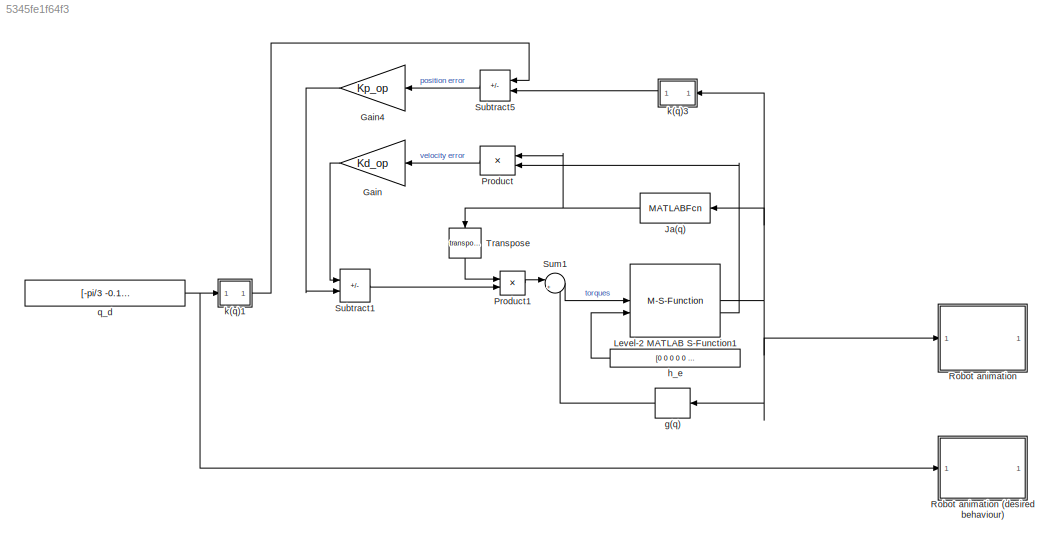
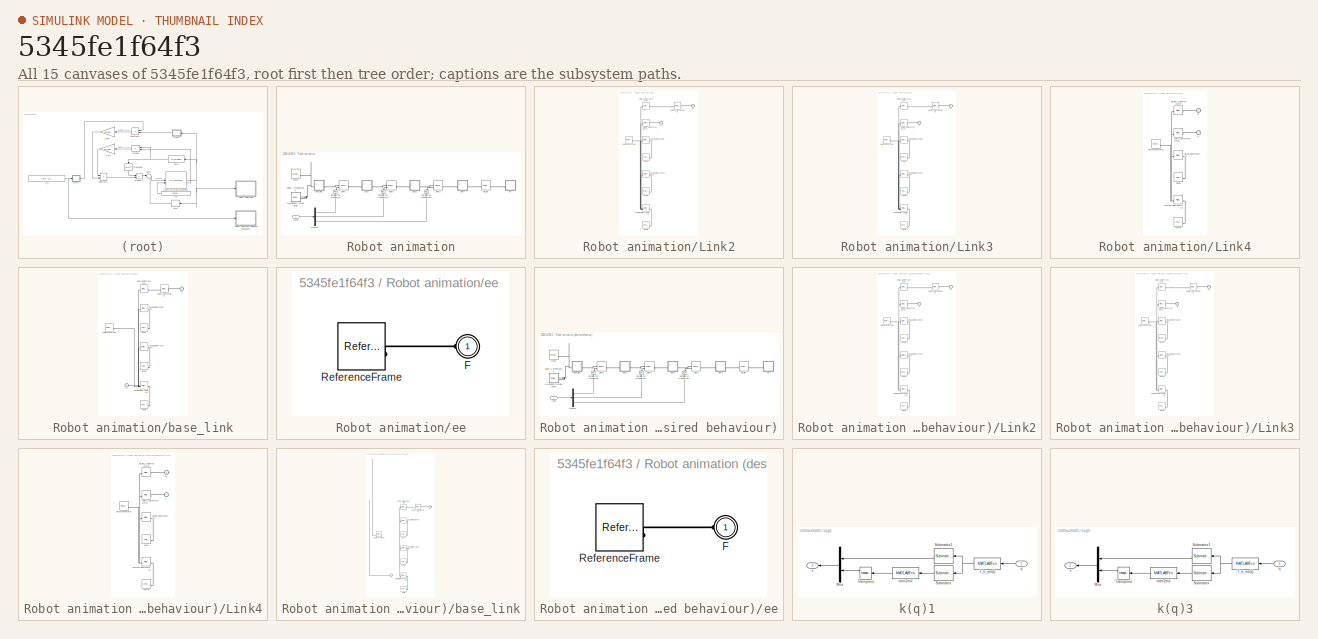
[diagram: thumbnail index - all 15 canvases of the model, root first then tree order]
MODEL slx_5345fe1f64f3
KIND model
CONFIG AbsTol = auto
CONFIG EnableMultiTasking = off
CONFIG FixedStep = 0.001
CONFIG MaxStep = auto
CONFIG MinStep = 0.001
CONFIG RelTol = 1e-3
CONFIG SampleTimeConstraint = Unconstrained
CONFIG SolverName = VariableStepAuto
CONFIG StartTime = 0.0
CONFIG StopTime = 10
BLOCK [Gain] Gain
  Gain = Kd_op
  Multiplication = Matrix(K*u)
  NameLocation = top
BLOCK [Gain] Gain4
  Gain = Kp_op
  Multiplication = Matrix(K*u)
  NameLocation = top
BLOCK [MATLABFcn] Ja(q)
  MATLABFcn = myRobot.func.Ja(u(1),u(2),u(3))
  NameLocation = top
  Output1D = off
BLOCK [M-S-Function] Level-2 MATLAB S-Function1
  FunctionName = robot_s_function
  Parameters = myRobot,q_i,dq_i
BLOCK [Product] Product
  Multiplication = Matrix(*)
  NameLocation = top
BLOCK [Product] Product1
  Multiplication = Matrix(*)
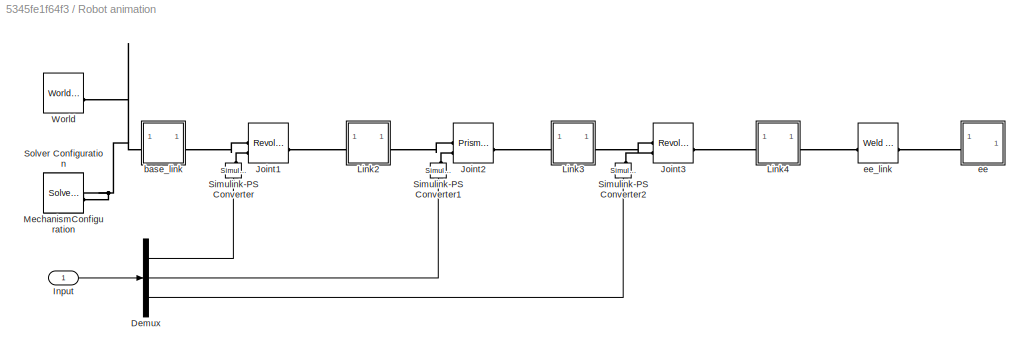
BLOCK [SubSystem] Robot animation
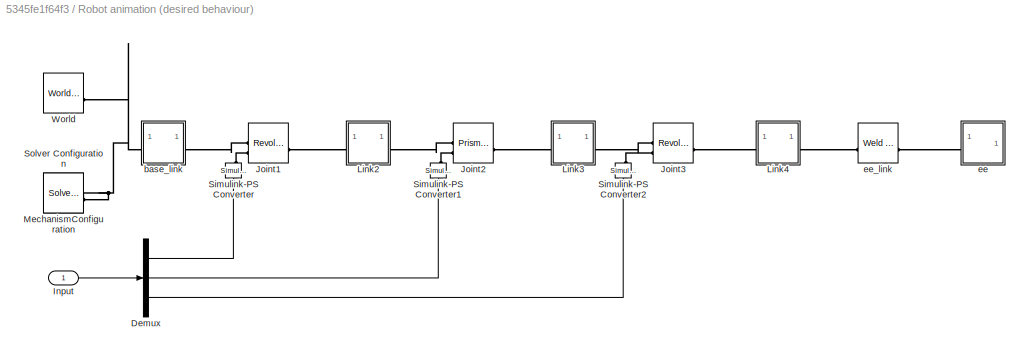
BLOCK [SubSystem] Robot animation (desired behaviour)
BLOCK [Demux] Robot animation (desired behaviour)/Demux
  Outputs = 3
BLOCK [Inport] Robot animation (desired behaviour)/Input
BLOCK [Reference] Robot animation (desired behaviour)/Joint1  REF=sm_lib/Joints/Revolute Joint
  SourceBlock = sm_lib/Joints/Revolute Joint
  SourceType = Revolute Joint
BLOCK [Reference] Robot animation (desired behaviour)/Joint2  REF=sm_lib/Joints/Prismatic
Joint
  SourceBlock = sm_lib/Joints/Prismatic\nJoint
  SourceType = Prismatic\nJoint
BLOCK [Reference] Robot animation (desired behaviour)/Joint3  REF=sm_lib/Joints/Revolute Joint
  SourceBlock = sm_lib/Joints/Revolute Joint
  SourceType = Revolute Joint
BLOCK [SubSystem] Robot animation (desired behaviour)/Link2
BLOCK [PMIOPort] Robot animation (desired behaviour)/Link2/F
  Side = Left
BLOCK [PMIOPort] Robot animation (desired behaviour)/Link2/F1
  Port = 2
  Side = Right
BLOCK [Reference] Robot animation (desired behaviour)/Link2/Inertia  REF=sm_lib/Body Elements/Inertia
  SourceBlock = sm_lib/Body Elements/Inertia
  SourceType = Inertia
BLOCK [Reference] Robot animation (desired behaviour)/Link2/InertiaOriginTransform  REF=sm_lib/Frames and
Transforms/Rigid
Transform
  SourceBlock = sm_lib/Frames and\nTransforms/Rigid\nTransform
  SourceType = Rigid\nTransform
BLOCK [Reference] Robot animation (desired behaviour)/Link2/Joint1_AxisInvTransform  REF=sm_lib/Frames and
Transforms/Rigid
Transform
  SourceBlock = sm_lib/Frames and\nTransforms/Rigid\nTransform
  SourceType = Rigid\nTransform
BLOCK [Reference] Robot animation (desired behaviour)/Link2/Joint2_AxisTransform  REF=sm_lib/Frames and
Transforms/Rigid
Transform
  SourceBlock = sm_lib/Frames and\nTransforms/Rigid\nTransform
  SourceType = Rigid\nTransform
BLOCK [Reference] Robot animation (desired behaviour)/Link2/Joint2_OriginTransform  REF=sm_lib/Frames and
Transforms/Rigid
Transform
  SourceBlock = sm_lib/Frames and\nTransforms/Rigid\nTransform
  SourceType = Rigid\nTransform
BLOCK [Reference] Robot animation (desired behaviour)/Link2/ReferenceFrame  REF=sm_lib/Frames and
Transforms/Reference
Frame
  SourceBlock = sm_lib/Frames and\nTransforms/Reference\nFrame
  SourceType = Reference\nFrame
BLOCK [Reference] Robot animation (desired behaviour)/Link2/Visual  REF=sm_lib/Body Elements/Cylindrical Solid
  SourceBlock = sm_lib/Body Elements/Cylindrical Solid
  SourceType = Cylindrical Solid
BLOCK [Reference] Robot animation (desired behaviour)/Link2/Visual1  REF=sm_lib/Body Elements/Brick Solid
  SourceBlock = sm_lib/Body Elements/Brick Solid
  SourceType = Brick Solid
BLOCK [Reference] Robot animation (desired behaviour)/Link2/VisualOrigin1Transform  REF=sm_lib/Frames and
Transforms/Rigid
Transform
  SourceBlock = sm_lib/Frames and\nTransforms/Rigid\nTransform
  SourceType = Rigid\nTransform
BLOCK [Reference] Robot animation (desired behaviour)/Link2/VisualOriginTransform  REF=sm_lib/Frames and
Transforms/Rigid
Transform
  SourceBlock = sm_lib/Frames and\nTransforms/Rigid\nTransform
  SourceType = Rigid\nTransform
BLOCK [SubSystem] Robot animation (desired behaviour)/Link3
BLOCK [PMIOPort] Robot animation (desired behaviour)/Link3/F
  Side = Left
BLOCK [PMIOPort] Robot animation (desired behaviour)/Link3/F1
  Port = 2
  Side = Right
BLOCK [Reference] Robot animation (desired behaviour)/Link3/Inertia  REF=sm_lib/Body Elements/Inertia
  SourceBlock = sm_lib/Body Elements/Inertia
  SourceType = Inertia
BLOCK [Reference] Robot animation (desired behaviour)/Link3/InertiaOriginTransform  REF=sm_lib/Frames and
Transforms/Rigid
Transform
  SourceBlock = sm_lib/Frames and\nTransforms/Rigid\nTransform
  SourceType = Rigid\nTransform
BLOCK [Reference] Robot animation (desired behaviour)/Link3/Joint2_AxisInvTransform  REF=sm_lib/Frames and
Transforms/Rigid
Transform
  SourceBlock = sm_lib/Frames and\nTransforms/Rigid\nTransform
  SourceType = Rigid\nTransform
BLOCK [Reference] Robot animation (desired behaviour)/Link3/Joint3_AxisTransform  REF=sm_lib/Frames and
Transforms/Rigid
Transform
  SourceBlock = sm_lib/Frames and\nTransforms/Rigid\nTransform
  SourceType = Rigid\nTransform
BLOCK [Reference] Robot animation (desired behaviour)/Link3/Joint3_OriginTransform  REF=sm_lib/Frames and
Transforms/Rigid
Transform
  SourceBlock = sm_lib/Frames and\nTransforms/Rigid\nTransform
  SourceType = Rigid\nTransform
BLOCK [Reference] Robot animation (desired behaviour)/Link3/ReferenceFrame  REF=sm_lib/Frames and
Transforms/Reference
Frame
  SourceBlock = sm_lib/Frames and\nTransforms/Reference\nFrame
  SourceType = Reference\nFrame
BLOCK [Reference] Robot animation (desired behaviour)/Link3/Visual  REF=sm_lib/Body Elements/Brick Solid
  SourceBlock = sm_lib/Body Elements/Brick Solid
  SourceType = Brick Solid
BLOCK [Reference] Robot animation (desired behaviour)/Link3/Visual1  REF=sm_lib/Body Elements/Cylindrical Solid
  SourceBlock = sm_lib/Body Elements/Cylindrical Solid
  SourceType = Cylindrical Solid
BLOCK [Reference] Robot animation (desired behaviour)/Link3/VisualOrigin1Transform  REF=sm_lib/Frames and
Transforms/Rigid
Transform
  SourceBlock = sm_lib/Frames and\nTransforms/Rigid\nTransform
  SourceType = Rigid\nTransform
BLOCK [Reference] Robot animation (desired behaviour)/Link3/VisualOriginTransform  REF=sm_lib/Frames and
Transforms/Rigid
Transform
  SourceBlock = sm_lib/Frames and\nTransforms/Rigid\nTransform
  SourceType = Rigid\nTransform
BLOCK [SubSystem] Robot animation (desired behaviour)/Link4
BLOCK [PMIOPort] Robot animation (desired behaviour)/Link4/F
  Side = Left
BLOCK [PMIOPort] Robot animation (desired behaviour)/Link4/F1
  Port = 2
  Side = Right
BLOCK [Reference] Robot animation (desired behaviour)/Link4/Inertia  REF=sm_lib/Body Elements/Inertia
  SourceBlock = sm_lib/Body Elements/Inertia
  SourceType = Inertia
BLOCK [Reference] Robot animation (desired behaviour)/Link4/InertiaOriginTransform  REF=sm_lib/Frames and
Transforms/Rigid
Transform
  SourceBlock = sm_lib/Frames and\nTransforms/Rigid\nTransform
  SourceType = Rigid\nTransform
BLOCK [Reference] Robot animation (desired behaviour)/Link4/Joint3_AxisInvTransform  REF=sm_lib/Frames and
Transforms/Rigid
Transform
  SourceBlock = sm_lib/Frames and\nTransforms/Rigid\nTransform
  SourceType = Rigid\nTransform
BLOCK [Reference] Robot animation (desired behaviour)/Link4/ReferenceFrame  REF=sm_lib/Frames and
Transforms/Reference
Frame
  SourceBlock = sm_lib/Frames and\nTransforms/Reference\nFrame
  SourceType = Reference\nFrame
BLOCK [Reference] Robot animation (desired behaviour)/Link4/Visual  REF=sm_lib/Body Elements/Cylindrical Solid
  SourceBlock = sm_lib/Body Elements/Cylindrical Solid
  SourceType = Cylindrical Solid
BLOCK [Reference] Robot animation (desired behaviour)/Link4/VisualOriginTransform  REF=sm_lib/Frames and
Transforms/Rigid
Transform
  SourceBlock = sm_lib/Frames and\nTransforms/Rigid\nTransform
  SourceType = Rigid\nTransform
BLOCK [Reference] Robot animation (desired behaviour)/Link4/ee_link_OriginTransform  REF=sm_lib/Frames and
Transforms/Rigid
Transform
  SourceBlock = sm_lib/Frames and\nTransforms/Rigid\nTransform
  SourceType = Rigid\nTransform
BLOCK [Reference] Robot animation (desired behaviour)/MechanismConfiguration  REF=sm_lib/Utilities/Mechanism
Configuration
  SourceBlock = sm_lib/Utilities/Mechanism\nConfiguration
  SourceType = Mechanism\nConfiguration
BLOCK [Reference] Robot animation (desired behaviour)/Simulink-PS Converter  REF=nesl_utility/Simulink-PS
Converter
  NameLocation = right
  SourceBlock = nesl_utility/Simulink-PS\nConverter
  SourceType = Simulink-PS\nConverter
BLOCK [Reference] Robot animation (desired behaviour)/Simulink-PS Converter1  REF=nesl_utility/Simulink-PS
Converter
  NameLocation = right
  SourceBlock = nesl_utility/Simulink-PS\nConverter
  SourceType = Simulink-PS\nConverter
BLOCK [Reference] Robot animation (desired behaviour)/Simulink-PS Converter2  REF=nesl_utility/Simulink-PS
Converter
  NameLocation = right
  SourceBlock = nesl_utility/Simulink-PS\nConverter
  SourceType = Simulink-PS\nConverter
BLOCK [Reference] Robot animation (desired behaviour)/Solver Configuration  REF=nesl_utility/Solver
Configuration
  SourceBlock = nesl_utility/Solver\nConfiguration
  SourceType = Solver\nConfiguration
BLOCK [Reference] Robot animation (desired behaviour)/World  REF=sm_lib/Frames and
Transforms/World Frame
  SourceBlock = sm_lib/Frames and\nTransforms/World Frame
  SourceType = World Frame
BLOCK [SubSystem] Robot animation (desired behaviour)/base_link
BLOCK [PMIOPort] Robot animation (desired behaviour)/base_link/F
  Side = Left
BLOCK [PMIOPort] Robot animation (desired behaviour)/base_link/F1
  Port = 2
  Side = Right
BLOCK [Reference] Robot animation (desired behaviour)/base_link/Inertia  REF=sm_lib/Body Elements/Inertia
  SourceBlock = sm_lib/Body Elements/Inertia
  SourceType = Inertia
BLOCK [Reference] Robot animation (desired behaviour)/base_link/InertiaOriginTransform  REF=sm_lib/Frames and
Transforms/Rigid
Transform
  SourceBlock = sm_lib/Frames and\nTransforms/Rigid\nTransform
  SourceType = Rigid\nTransform
BLOCK [Reference] Robot animation (desired behaviour)/base_link/Joint1_AxisTransform  REF=sm_lib/Frames and
Transforms/Rigid
Transform
  SourceBlock = sm_lib/Frames and\nTransforms/Rigid\nTransform
  SourceType = Rigid\nTransform
BLOCK [Reference] Robot animation (desired behaviour)/base_link/Joint1_OriginTransform  REF=sm_lib/Frames and
Transforms/Rigid
Transform
  SourceBlock = sm_lib/Frames and\nTransforms/Rigid\nTransform
  SourceType = Rigid\nTransform
BLOCK [Reference] Robot animation (desired behaviour)/base_link/ReferenceFrame  REF=sm_lib/Frames and
Transforms/Reference
Frame
  SourceBlock = sm_lib/Frames and\nTransforms/Reference\nFrame
  SourceType = Reference\nFrame
BLOCK [Reference] Robot animation (desired behaviour)/base_link/Visual  REF=sm_lib/Body Elements/Cylindrical Solid
  SourceBlock = sm_lib/Body Elements/Cylindrical Solid
  SourceType = Cylindrical Solid
BLOCK [Reference] Robot animation (desired behaviour)/base_link/Visual1  REF=sm_lib/Body Elements/Cylindrical Solid
  SourceBlock = sm_lib/Body Elements/Cylindrical Solid
  SourceType = Cylindrical Solid
BLOCK [Reference] Robot animation (desired behaviour)/base_link/VisualOrigin1Transform  REF=sm_lib/Frames and
Transforms/Rigid
Transform
  SourceBlock = sm_lib/Frames and\nTransforms/Rigid\nTransform
  SourceType = Rigid\nTransform
BLOCK [Reference] Robot animation (desired behaviour)/base_link/VisualOriginTransform  REF=sm_lib/Frames and
Transforms/Rigid
Transform
  SourceBlock = sm_lib/Frames and\nTransforms/Rigid\nTransform
  SourceType = Rigid\nTransform
BLOCK [SubSystem] Robot animation (desired behaviour)/ee
BLOCK [PMIOPort] Robot animation (desired behaviour)/ee/F
  Side = Left
BLOCK [Reference] Robot animation (desired behaviour)/ee/ReferenceFrame  REF=sm_lib/Frames and
Transforms/Reference
Frame
  SourceBlock = sm_lib/Frames and\nTransforms/Reference\nFrame
  SourceType = Reference\nFrame
BLOCK [Reference] Robot animation (desired behaviour)/ee_link  REF=sm_lib/Joints/Weld Joint
  SourceBlock = sm_lib/Joints/Weld Joint
  SourceType = Weld Joint
BLOCK [Demux] Robot animation/Demux
  Outputs = 3
BLOCK [Inport] Robot animation/Input
BLOCK [Reference] Robot animation/Joint1  REF=sm_lib/Joints/Revolute Joint
  SourceBlock = sm_lib/Joints/Revolute Joint
  SourceType = Revolute Joint
BLOCK [Reference] Robot animation/Joint2  REF=sm_lib/Joints/Prismatic
Joint
  SourceBlock = sm_lib/Joints/Prismatic\nJoint
  SourceType = Prismatic\nJoint
BLOCK [Reference] Robot animation/Joint3  REF=sm_lib/Joints/Revolute Joint
  SourceBlock = sm_lib/Joints/Revolute Joint
  SourceType = Revolute Joint
BLOCK [SubSystem] Robot animation/Link2
BLOCK [PMIOPort] Robot animation/Link2/F
  Side = Left
BLOCK [PMIOPort] Robot animation/Link2/F1
  Port = 2
  Side = Right
BLOCK [Reference] Robot animation/Link2/Inertia  REF=sm_lib/Body Elements/Inertia
  SourceBlock = sm_lib/Body Elements/Inertia
  SourceType = Inertia
BLOCK [Reference] Robot animation/Link2/InertiaOriginTransform  REF=sm_lib/Frames and
Transforms/Rigid
Transform
  SourceBlock = sm_lib/Frames and\nTransforms/Rigid\nTransform
  SourceType = Rigid\nTransform
BLOCK [Reference] Robot animation/Link2/Joint1_AxisInvTransform  REF=sm_lib/Frames and
Transforms/Rigid
Transform
  SourceBlock = sm_lib/Frames and\nTransforms/Rigid\nTransform
  SourceType = Rigid\nTransform
BLOCK [Reference] Robot animation/Link2/Joint2_AxisTransform  REF=sm_lib/Frames and
Transforms/Rigid
Transform
  SourceBlock = sm_lib/Frames and\nTransforms/Rigid\nTransform
  SourceType = Rigid\nTransform
BLOCK [Reference] Robot animation/Link2/Joint2_OriginTransform  REF=sm_lib/Frames and
Transforms/Rigid
Transform
  SourceBlock = sm_lib/Frames and\nTransforms/Rigid\nTransform
  SourceType = Rigid\nTransform
BLOCK [Reference] Robot animation/Link2/ReferenceFrame  REF=sm_lib/Frames and
Transforms/Reference
Frame
  SourceBlock = sm_lib/Frames and\nTransforms/Reference\nFrame
  SourceType = Reference\nFrame
BLOCK [Reference] Robot animation/Link2/Visual  REF=sm_lib/Body Elements/Cylindrical Solid
  SourceBlock = sm_lib/Body Elements/Cylindrical Solid
  SourceType = Cylindrical Solid
BLOCK [Reference] Robot animation/Link2/Visual1  REF=sm_lib/Body Elements/Brick Solid
  SourceBlock = sm_lib/Body Elements/Brick Solid
  SourceType = Brick Solid
BLOCK [Reference] Robot animation/Link2/VisualOrigin1Transform  REF=sm_lib/Frames and
Transforms/Rigid
Transform
  SourceBlock = sm_lib/Frames and\nTransforms/Rigid\nTransform
  SourceType = Rigid\nTransform
BLOCK [Reference] Robot animation/Link2/VisualOriginTransform  REF=sm_lib/Frames and
Transforms/Rigid
Transform
  SourceBlock = sm_lib/Frames and\nTransforms/Rigid\nTransform
  SourceType = Rigid\nTransform
BLOCK [SubSystem] Robot animation/Link3
BLOCK [PMIOPort] Robot animation/Link3/F
  Side = Left
BLOCK [PMIOPort] Robot animation/Link3/F1
  Port = 2
  Side = Right
BLOCK [Reference] Robot animation/Link3/Inertia  REF=sm_lib/Body Elements/Inertia
  SourceBlock = sm_lib/Body Elements/Inertia
  SourceType = Inertia
BLOCK [Reference] Robot animation/Link3/InertiaOriginTransform  REF=sm_lib/Frames and
Transforms/Rigid
Transform
  SourceBlock = sm_lib/Frames and\nTransforms/Rigid\nTransform
  SourceType = Rigid\nTransform
BLOCK [Reference] Robot animation/Link3/Joint2_AxisInvTransform  REF=sm_lib/Frames and
Transforms/Rigid
Transform
  SourceBlock = sm_lib/Frames and\nTransforms/Rigid\nTransform
  SourceType = Rigid\nTransform
BLOCK [Reference] Robot animation/Link3/Joint3_AxisTransform  REF=sm_lib/Frames and
Transforms/Rigid
Transform
  SourceBlock = sm_lib/Frames and\nTransforms/Rigid\nTransform
  SourceType = Rigid\nTransform
BLOCK [Reference] Robot animation/Link3/Joint3_OriginTransform  REF=sm_lib/Frames and
Transforms/Rigid
Transform
  SourceBlock = sm_lib/Frames and\nTransforms/Rigid\nTransform
  SourceType = Rigid\nTransform
BLOCK [Reference] Robot animation/Link3/ReferenceFrame  REF=sm_lib/Frames and
Transforms/Reference
Frame
  SourceBlock = sm_lib/Frames and\nTransforms/Reference\nFrame
  SourceType = Reference\nFrame
BLOCK [Reference] Robot animation/Link3/Visual  REF=sm_lib/Body Elements/Brick Solid
  SourceBlock = sm_lib/Body Elements/Brick Solid
  SourceType = Brick Solid
BLOCK [Reference] Robot animation/Link3/Visual1  REF=sm_lib/Body Elements/Cylindrical Solid
  SourceBlock = sm_lib/Body Elements/Cylindrical Solid
  SourceType = Cylindrical Solid
BLOCK [Reference] Robot animation/Link3/VisualOrigin1Transform  REF=sm_lib/Frames and
Transforms/Rigid
Transform
  SourceBlock = sm_lib/Frames and\nTransforms/Rigid\nTransform
  SourceType = Rigid\nTransform
BLOCK [Reference] Robot animation/Link3/VisualOriginTransform  REF=sm_lib/Frames and
Transforms/Rigid
Transform
  SourceBlock = sm_lib/Frames and\nTransforms/Rigid\nTransform
  SourceType = Rigid\nTransform
BLOCK [SubSystem] Robot animation/Link4
BLOCK [PMIOPort] Robot animation/Link4/F
  Side = Left
BLOCK [PMIOPort] Robot animation/Link4/F1
  Port = 2
  Side = Right
BLOCK [Reference] Robot animation/Link4/Inertia  REF=sm_lib/Body Elements/Inertia
  SourceBlock = sm_lib/Body Elements/Inertia
  SourceType = Inertia
BLOCK [Reference] Robot animation/Link4/InertiaOriginTransform  REF=sm_lib/Frames and
Transforms/Rigid
Transform
  SourceBlock = sm_lib/Frames and\nTransforms/Rigid\nTransform
  SourceType = Rigid\nTransform
BLOCK [Reference] Robot animation/Link4/Joint3_AxisInvTransform  REF=sm_lib/Frames and
Transforms/Rigid
Transform
  SourceBlock = sm_lib/Frames and\nTransforms/Rigid\nTransform
  SourceType = Rigid\nTransform
BLOCK [Reference] Robot animation/Link4/ReferenceFrame  REF=sm_lib/Frames and
Transforms/Reference
Frame
  SourceBlock = sm_lib/Frames and\nTransforms/Reference\nFrame
  SourceType = Reference\nFrame
BLOCK [Reference] Robot animation/Link4/Visual  REF=sm_lib/Body Elements/Cylindrical Solid
  SourceBlock = sm_lib/Body Elements/Cylindrical Solid
  SourceType = Cylindrical Solid
BLOCK [Reference] Robot animation/Link4/VisualOriginTransform  REF=sm_lib/Frames and
Transforms/Rigid
Transform
  SourceBlock = sm_lib/Frames and\nTransforms/Rigid\nTransform
  SourceType = Rigid\nTransform
BLOCK [Reference] Robot animation/Link4/ee_link_OriginTransform  REF=sm_lib/Frames and
Transforms/Rigid
Transform
  SourceBlock = sm_lib/Frames and\nTransforms/Rigid\nTransform
  SourceType = Rigid\nTransform
BLOCK [Reference] Robot animation/MechanismConfiguration  REF=sm_lib/Utilities/Mechanism
Configuration
  SourceBlock = sm_lib/Utilities/Mechanism\nConfiguration
  SourceType = Mechanism\nConfiguration
BLOCK [Reference] Robot animation/Simulink-PS Converter  REF=nesl_utility/Simulink-PS
Converter
  NameLocation = right
  SourceBlock = nesl_utility/Simulink-PS\nConverter
  SourceType = Simulink-PS\nConverter
BLOCK [Reference] Robot animation/Simulink-PS Converter1  REF=nesl_utility/Simulink-PS
Converter
  NameLocation = right
  SourceBlock = nesl_utility/Simulink-PS\nConverter
  SourceType = Simulink-PS\nConverter
BLOCK [Reference] Robot animation/Simulink-PS Converter2  REF=nesl_utility/Simulink-PS
Converter
  NameLocation = right
  SourceBlock = nesl_utility/Simulink-PS\nConverter
  SourceType = Simulink-PS\nConverter
BLOCK [Reference] Robot animation/Solver Configuration  REF=nesl_utility/Solver
Configuration
  SourceBlock = nesl_utility/Solver\nConfiguration
  SourceType = Solver\nConfiguration
BLOCK [Reference] Robot animation/World  REF=sm_lib/Frames and
Transforms/World Frame
  SourceBlock = sm_lib/Frames and\nTransforms/World Frame
  SourceType = World Frame
BLOCK [SubSystem] Robot animation/base_link
BLOCK [PMIOPort] Robot animation/base_link/F
  Side = Left
BLOCK [PMIOPort] Robot animation/base_link/F1
  Port = 2
  Side = Right
BLOCK [Reference] Robot animation/base_link/Inertia  REF=sm_lib/Body Elements/Inertia
  SourceBlock = sm_lib/Body Elements/Inertia
  SourceType = Inertia
BLOCK [Reference] Robot animation/base_link/InertiaOriginTransform  REF=sm_lib/Frames and
Transforms/Rigid
Transform
  SourceBlock = sm_lib/Frames and\nTransforms/Rigid\nTransform
  SourceType = Rigid\nTransform
BLOCK [Reference] Robot animation/base_link/Joint1_AxisTransform  REF=sm_lib/Frames and
Transforms/Rigid
Transform
  SourceBlock = sm_lib/Frames and\nTransforms/Rigid\nTransform
  SourceType = Rigid\nTransform
BLOCK [Reference] Robot animation/base_link/Joint1_OriginTransform  REF=sm_lib/Frames and
Transforms/Rigid
Transform
  SourceBlock = sm_lib/Frames and\nTransforms/Rigid\nTransform
  SourceType = Rigid\nTransform
BLOCK [Reference] Robot animation/base_link/ReferenceFrame  REF=sm_lib/Frames and
Transforms/Reference
Frame
  SourceBlock = sm_lib/Frames and\nTransforms/Reference\nFrame
  SourceType = Reference\nFrame
BLOCK [Reference] Robot animation/base_link/Visual  REF=sm_lib/Body Elements/Cylindrical Solid
  SourceBlock = sm_lib/Body Elements/Cylindrical Solid
  SourceType = Cylindrical Solid
BLOCK [Reference] Robot animation/base_link/Visual1  REF=sm_lib/Body Elements/Cylindrical Solid
  SourceBlock = sm_lib/Body Elements/Cylindrical Solid
  SourceType = Cylindrical Solid
BLOCK [Reference] Robot animation/base_link/VisualOrigin1Transform  REF=sm_lib/Frames and
Transforms/Rigid
Transform
  SourceBlock = sm_lib/Frames and\nTransforms/Rigid\nTransform
  SourceType = Rigid\nTransform
BLOCK [Reference] Robot animation/base_link/VisualOriginTransform  REF=sm_lib/Frames and
Transforms/Rigid
Transform
  SourceBlock = sm_lib/Frames and\nTransforms/Rigid\nTransform
  SourceType = Rigid\nTransform
BLOCK [SubSystem] Robot animation/ee
BLOCK [PMIOPort] Robot animation/ee/F
  Side = Left
BLOCK [Reference] Robot animation/ee/ReferenceFrame  REF=sm_lib/Frames and
Transforms/Reference
Frame
  SourceBlock = sm_lib/Frames and\nTransforms/Reference\nFrame
  SourceType = Reference\nFrame
BLOCK [Reference] Robot animation/ee_link  REF=sm_lib/Joints/Weld Joint
  SourceBlock = sm_lib/Joints/Weld Joint
  SourceType = Weld Joint
BLOCK [Sum] Subtract1
  IconShape = rectangular
  Inputs = -+
  NameLocation = top
BLOCK [Sum] Subtract5
  IconShape = rectangular
  Inputs = +-
  NameLocation = top
BLOCK [Sum] Sum1
  Inputs = |++
BLOCK [Math] Transpose
  NameLocation = left
  Operator = transpose
BLOCK [MATLABFcn] g(q) 
  MATLABFcn = myRobot.func.G(u(1), u(2), u(3))
  OutputDimensions = 3
BLOCK [Constant] h_e
  Value = [0 0 0 0 0 0]
BLOCK [SubSystem] k(q)1
BLOCK [Mux] k(q)1/Mux
  DisplayOption = bar
  Inputs = 2
  NameLocation = top
BLOCK [Reference] k(q)1/Submatrix  REF=matrix_library/Submatrix
  NameLocation = top
  SourceBlock = matrix_library/Submatrix
  SourceType = Submatrix
BLOCK [Reference] k(q)1/Submatrix1  REF=matrix_library/Submatrix
  NameLocation = top
  SourceBlock = matrix_library/Submatrix
  SourceType = Submatrix
BLOCK [MATLABFcn] k(q)1/T_b_ee(q)
  MATLABFcn = myRobot.func.T_b_ee(u(1), u(2), u(3))
  NameLocation = top
  Output1D = off
BLOCK [Math] k(q)1/Transpose
  NameLocation = top
  Operator = transpose
BLOCK [Inport] k(q)1/q
  NameLocation = top
BLOCK [MATLABFcn] k(q)1/rotm2eul
  MATLABFcn = rotm2eul(u, "ZYZ")
  NameLocation = top
  Output1D = off
BLOCK [Outport] k(q)1/x
  NameLocation = top
BLOCK [SubSystem] k(q)3
  NameLocation = top
BLOCK [Mux] k(q)3/Mux
  DisplayOption = bar
  Inputs = 2
  NameLocation = top
BLOCK [Reference] k(q)3/Submatrix  REF=matrix_library/Submatrix
  NameLocation = top
  SourceBlock = matrix_library/Submatrix
  SourceType = Submatrix
BLOCK [Reference] k(q)3/Submatrix1  REF=matrix_library/Submatrix
  NameLocation = top
  SourceBlock = matrix_library/Submatrix
  SourceType = Submatrix
BLOCK [MATLABFcn] k(q)3/T_b_ee(q)
  MATLABFcn = myRobot.func.T_b_ee(u(1), u(2), u(3))
  NameLocation = top
  Output1D = off
BLOCK [Math] k(q)3/Transpose
  NameLocation = top
  Operator = transpose
BLOCK [Inport] k(q)3/q
  NameLocation = top
BLOCK [MATLABFcn] k(q)3/rotm2eul
  MATLABFcn = rotm2eul(u, "ZYZ")
  NameLocation = top
  Output1D = off
BLOCK [Outport] k(q)3/x
  NameLocation = top
BLOCK [Constant] q_d
  Value = [-pi/3 -0.18 (3*pi)/2]
LINE Gain4:1 -> Subtract1:2
LINE Gain:1 -> Subtract1:1
NET Ja(q):1 -> Product:1, Transpose:1
NET Level-2 MATLAB S-Function1:1 -> Ja(q):1, Robot animation:1, g(q) :1, k(q)3:1
LINE Level-2 MATLAB S-Function1:2 -> Product:2
LINE Product1:1 -> Sum1:1
LINE Product:1 -> Gain:1
LINE Robot animation (desired behaviour)/Demux:1 -> Robot animation (desired behaviour)/Simulink-PS Converter:1
LINE Robot animation (desired behaviour)/Demux:2 -> Robot animation (desired behaviour)/Simulink-PS Converter1:1
LINE Robot animation (desired behaviour)/Demux:3 -> Robot animation (desired behaviour)/Simulink-PS Converter2:1
LINE Robot animation (desired behaviour)/Input:1 -> Robot animation (desired behaviour)/Demux:1
LINE Robot animation/Demux:1 -> Robot animation/Simulink-PS Converter:1
LINE Robot animation/Demux:2 -> Robot animation/Simulink-PS Converter1:1
LINE Robot animation/Demux:3 -> Robot animation/Simulink-PS Converter2:1
LINE Robot animation/Input:1 -> Robot animation/Demux:1
LINE Subtract1:1 -> Product1:2
LINE Subtract5:1 -> Gain4:1
LINE Sum1:1 -> Level-2 MATLAB S-Function1:1
LINE Transpose:1 -> Product1:1
LINE g(q) :1 -> Sum1:2
LINE h_e:1 -> Level-2 MATLAB S-Function1:2
LINE k(q)1/Mux:1 -> k(q)1/x:1
LINE k(q)1/Submatrix1:1 -> k(q)1/Mux:1
LINE k(q)1/Submatrix:1 -> k(q)1/rotm2eul:1
NET k(q)1/T_b_ee(q):1 -> k(q)1/Submatrix1:1, k(q)1/Submatrix:1
LINE k(q)1/Transpose:1 -> k(q)1/Mux:2
LINE k(q)1/q:1 -> k(q)1/T_b_ee(q):1
LINE k(q)1/rotm2eul:1 -> k(q)1/Transpose:1
LINE k(q)1:1 -> Subtract5:1
LINE k(q)3/Mux:1 -> k(q)3/x:1
LINE k(q)3/Submatrix1:1 -> k(q)3/Mux:1
LINE k(q)3/Submatrix:1 -> k(q)3/rotm2eul:1
NET k(q)3/T_b_ee(q):1 -> k(q)3/Submatrix1:1, k(q)3/Submatrix:1
LINE k(q)3/Transpose:1 -> k(q)3/Mux:2
LINE k(q)3/q:1 -> k(q)3/T_b_ee(q):1
LINE k(q)3/rotm2eul:1 -> k(q)3/Transpose:1
LINE k(q)3:1 -> Subtract5:2
NET q_d:1 -> Robot animation (desired behaviour):1, k(q)1:1
PLINE Robot animation (desired behaviour)/Joint1:LConn1 -- Robot animation (desired behaviour)/base_link:RConn1
PLINE Robot animation (desired behaviour)/Joint1:LConn2 -- Robot animation (desired behaviour)/Simulink-PS Converter:RConn1
PLINE Robot animation (desired behaviour)/Joint1:RConn1 -- Robot animation (desired behaviour)/Link2:LConn1
PLINE Robot animation (desired behaviour)/Joint2:LConn1 -- Robot animation (desired behaviour)/Link2:RConn1
PLINE Robot animation (desired behaviour)/Joint2:LConn2 -- Robot animation (desired behaviour)/Simulink-PS Converter1:RConn1
PLINE Robot animation (desired behaviour)/Joint2:RConn1 -- Robot animation (desired behaviour)/Link3:LConn1
PLINE Robot animation (desired behaviour)/Joint3:LConn1 -- Robot animation (desired behaviour)/Link3:RConn1
PLINE Robot animation (desired behaviour)/Joint3:LConn2 -- Robot animation (desired behaviour)/Simulink-PS Converter2:RConn1
PLINE Robot animation (desired behaviour)/Joint3:RConn1 -- Robot animation (desired behaviour)/Link4:LConn1
PLINE Robot animation (desired behaviour)/Link2/F1:RConn1 -- Robot animation (desired behaviour)/Link2/Joint2_AxisTransform:RConn1
PLINE Robot animation (desired behaviour)/Link2/F:RConn1 -- Robot animation (desired behaviour)/Link2/Joint1_AxisInvTransform:RConn1
PLINE Robot animation (desired behaviour)/Link2/Inertia:RConn1 -- Robot animation (desired behaviour)/Link2/InertiaOriginTransform:RConn1
PNET net1: Robot animation (desired behaviour)/Link2/InertiaOriginTransform:LConn1 -- Robot animation (desired behaviour)/Link2/Joint1_AxisInvTransform:LConn1 -- Robot animation (desired behaviour)/Link2/Joint2_OriginTransform:LConn1 -- Robot animation (desired behaviour)/Link2/ReferenceFrame:RConn1 -- Robot animation (desired behaviour)/Link2/VisualOrigin1Transform:LConn1 -- Robot animation (desired behaviour)/Link2/VisualOriginTransform:LConn1
PLINE Robot animation (desired behaviour)/Link2/Joint2_AxisTransform:LConn1 -- Robot animation (desired behaviour)/Link2/Joint2_OriginTransform:RConn1
PLINE Robot animation (desired behaviour)/Link2/Visual1:RConn1 -- Robot animation (desired behaviour)/Link2/VisualOrigin1Transform:RConn1
PLINE Robot animation (desired behaviour)/Link2/Visual:RConn1 -- Robot animation (desired behaviour)/Link2/VisualOriginTransform:RConn1
PLINE Robot animation (desired behaviour)/Link3/F1:RConn1 -- Robot animation (desired behaviour)/Link3/Joint3_AxisTransform:RConn1
PLINE Robot animation (desired behaviour)/Link3/F:RConn1 -- Robot animation (desired behaviour)/Link3/Joint2_AxisInvTransform:RConn1
PLINE Robot animation (desired behaviour)/Link3/Inertia:RConn1 -- Robot animation (desired behaviour)/Link3/InertiaOriginTransform:RConn1
PNET net2: Robot animation (desired behaviour)/Link3/InertiaOriginTransform:LConn1 -- Robot animation (desired behaviour)/Link3/Joint2_AxisInvTransform:LConn1 -- Robot animation (desired behaviour)/Link3/Joint3_OriginTransform:LConn1 -- Robot animation (desired behaviour)/Link3/ReferenceFrame:RConn1 -- Robot animation (desired behaviour)/Link3/VisualOrigin1Transform:LConn1 -- Robot animation (desired behaviour)/Link3/VisualOriginTransform:LConn1
PLINE Robot animation (desired behaviour)/Link3/Joint3_AxisTransform:LConn1 -- Robot animation (desired behaviour)/Link3/Joint3_OriginTransform:RConn1
PLINE Robot animation (desired behaviour)/Link3/Visual1:RConn1 -- Robot animation (desired behaviour)/Link3/VisualOrigin1Transform:RConn1
PLINE Robot animation (desired behaviour)/Link3/Visual:RConn1 -- Robot animation (desired behaviour)/Link3/VisualOriginTransform:RConn1
PLINE Robot animation (desired behaviour)/Link4/F1:RConn1 -- Robot animation (desired behaviour)/Link4/ee_link_OriginTransform:RConn1
PLINE Robot animation (desired behaviour)/Link4/F:RConn1 -- Robot animation (desired behaviour)/Link4/Joint3_AxisInvTransform:RConn1
PLINE Robot animation (desired behaviour)/Link4/Inertia:RConn1 -- Robot animation (desired behaviour)/Link4/InertiaOriginTransform:RConn1
PNET net3: Robot animation (desired behaviour)/Link4/InertiaOriginTransform:LConn1 -- Robot animation (desired behaviour)/Link4/Joint3_AxisInvTransform:LConn1 -- Robot animation (desired behaviour)/Link4/ReferenceFrame:RConn1 -- Robot animation (desired behaviour)/Link4/VisualOriginTransform:LConn1 -- Robot animation (desired behaviour)/Link4/ee_link_OriginTransform:LConn1
PLINE Robot animation (desired behaviour)/Link4/Visual:RConn1 -- Robot animation (desired behaviour)/Link4/VisualOriginTransform:RConn1
PLINE Robot animation (desired behaviour)/Link4:RConn1 -- Robot animation (desired behaviour)/ee_link:LConn1
PNET net4: Robot animation (desired behaviour)/MechanismConfiguration:RConn1 -- Robot animation (desired behaviour)/Solver Configuration:RConn1 -- Robot animation (desired behaviour)/World:RConn1 -- Robot animation (desired behaviour)/base_link:LConn1
PLINE Robot animation (desired behaviour)/base_link/F1:RConn1 -- Robot animation (desired behaviour)/base_link/Joint1_AxisTransform:RConn1
PNET net5: Robot animation (desired behaviour)/base_link/F:RConn1 -- Robot animation (desired behaviour)/base_link/InertiaOriginTransform:LConn1 -- Robot animation (desired behaviour)/base_link/Joint1_OriginTransform:LConn1 -- Robot animation (desired behaviour)/base_link/ReferenceFrame:RConn1 -- Robot animation (desired behaviour)/base_link/VisualOrigin1Transform:LConn1 -- Robot animation (desired behaviour)/base_link/VisualOriginTransform:LConn1
PLINE Robot animation (desired behaviour)/base_link/Inertia:RConn1 -- Robot animation (desired behaviour)/base_link/InertiaOriginTransform:RConn1
PLINE Robot animation (desired behaviour)/base_link/Joint1_AxisTransform:LConn1 -- Robot animation (desired behaviour)/base_link/Joint1_OriginTransform:RConn1
PLINE Robot animation (desired behaviour)/base_link/Visual1:RConn1 -- Robot animation (desired behaviour)/base_link/VisualOrigin1Transform:RConn1
PLINE Robot animation (desired behaviour)/base_link/Visual:RConn1 -- Robot animation (desired behaviour)/base_link/VisualOriginTransform:RConn1
PLINE Robot animation (desired behaviour)/ee/F:RConn1 -- Robot animation (desired behaviour)/ee/ReferenceFrame:RConn1
PLINE Robot animation (desired behaviour)/ee:LConn1 -- Robot animation (desired behaviour)/ee_link:RConn1
PLINE Robot animation/Joint1:LConn1 -- Robot animation/base_link:RConn1
PLINE Robot animation/Joint1:LConn2 -- Robot animation/Simulink-PS Converter:RConn1
PLINE Robot animation/Joint1:RConn1 -- Robot animation/Link2:LConn1
PLINE Robot animation/Joint2:LConn1 -- Robot animation/Link2:RConn1
PLINE Robot animation/Joint2:LConn2 -- Robot animation/Simulink-PS Converter1:RConn1
PLINE Robot animation/Joint2:RConn1 -- Robot animation/Link3:LConn1
PLINE Robot animation/Joint3:LConn1 -- Robot animation/Link3:RConn1
PLINE Robot animation/Joint3:LConn2 -- Robot animation/Simulink-PS Converter2:RConn1
PLINE Robot animation/Joint3:RConn1 -- Robot animation/Link4:LConn1
PLINE Robot animation/Link2/F1:RConn1 -- Robot animation/Link2/Joint2_AxisTransform:RConn1
PLINE Robot animation/Link2/F:RConn1 -- Robot animation/Link2/Joint1_AxisInvTransform:RConn1
PLINE Robot animation/Link2/Inertia:RConn1 -- Robot animation/Link2/InertiaOriginTransform:RConn1
PNET net6: Robot animation/Link2/InertiaOriginTransform:LConn1 -- Robot animation/Link2/Joint1_AxisInvTransform:LConn1 -- Robot animation/Link2/Joint2_OriginTransform:LConn1 -- Robot animation/Link2/ReferenceFrame:RConn1 -- Robot animation/Link2/VisualOrigin1Transform:LConn1 -- Robot animation/Link2/VisualOriginTransform:LConn1
PLINE Robot animation/Link2/Joint2_AxisTransform:LConn1 -- Robot animation/Link2/Joint2_OriginTransform:RConn1
PLINE Robot animation/Link2/Visual1:RConn1 -- Robot animation/Link2/VisualOrigin1Transform:RConn1
PLINE Robot animation/Link2/Visual:RConn1 -- Robot animation/Link2/VisualOriginTransform:RConn1
PLINE Robot animation/Link3/F1:RConn1 -- Robot animation/Link3/Joint3_AxisTransform:RConn1
PLINE Robot animation/Link3/F:RConn1 -- Robot animation/Link3/Joint2_AxisInvTransform:RConn1
PLINE Robot animation/Link3/Inertia:RConn1 -- Robot animation/Link3/InertiaOriginTransform:RConn1
PNET net7: Robot animation/Link3/InertiaOriginTransform:LConn1 -- Robot animation/Link3/Joint2_AxisInvTransform:LConn1 -- Robot animation/Link3/Joint3_OriginTransform:LConn1 -- Robot animation/Link3/ReferenceFrame:RConn1 -- Robot animation/Link3/VisualOrigin1Transform:LConn1 -- Robot animation/Link3/VisualOriginTransform:LConn1
PLINE Robot animation/Link3/Joint3_AxisTransform:LConn1 -- Robot animation/Link3/Joint3_OriginTransform:RConn1
PLINE Robot animation/Link3/Visual1:RConn1 -- Robot animation/Link3/VisualOrigin1Transform:RConn1
PLINE Robot animation/Link3/Visual:RConn1 -- Robot animation/Link3/VisualOriginTransform:RConn1
PLINE Robot animation/Link4/F1:RConn1 -- Robot animation/Link4/ee_link_OriginTransform:RConn1
PLINE Robot animation/Link4/F:RConn1 -- Robot animation/Link4/Joint3_AxisInvTransform:RConn1
PLINE Robot animation/Link4/Inertia:RConn1 -- Robot animation/Link4/InertiaOriginTransform:RConn1
PNET net8: Robot animation/Link4/InertiaOriginTransform:LConn1 -- Robot animation/Link4/Joint3_AxisInvTransform:LConn1 -- Robot animation/Link4/ReferenceFrame:RConn1 -- Robot animation/Link4/VisualOriginTransform:LConn1 -- Robot animation/Link4/ee_link_OriginTransform:LConn1
PLINE Robot animation/Link4/Visual:RConn1 -- Robot animation/Link4/VisualOriginTransform:RConn1
PLINE Robot animation/Link4:RConn1 -- Robot animation/ee_link:LConn1
PNET net9: Robot animation/MechanismConfiguration:RConn1 -- Robot animation/Solver Configuration:RConn1 -- Robot animation/World:RConn1 -- Robot animation/base_link:LConn1
PLINE Robot animation/base_link/F1:RConn1 -- Robot animation/base_link/Joint1_AxisTransform:RConn1
PNET net10: Robot animation/base_link/F:RConn1 -- Robot animation/base_link/InertiaOriginTransform:LConn1 -- Robot animation/base_link/Joint1_OriginTransform:LConn1 -- Robot animation/base_link/ReferenceFrame:RConn1 -- Robot animation/base_link/VisualOrigin1Transform:LConn1 -- Robot animation/base_link/VisualOriginTransform:LConn1
PLINE Robot animation/base_link/Inertia:RConn1 -- Robot animation/base_link/InertiaOriginTransform:RConn1
PLINE Robot animation/base_link/Joint1_AxisTransform:LConn1 -- Robot animation/base_link/Joint1_OriginTransform:RConn1
PLINE Robot animation/base_link/Visual1:RConn1 -- Robot animation/base_link/VisualOrigin1Transform:RConn1
PLINE Robot animation/base_link/Visual:RConn1 -- Robot animation/base_link/VisualOriginTransform:RConn1
PLINE Robot animation/ee/F:RConn1 -- Robot animation/ee/ReferenceFrame:RConn1
PLINE Robot animation/ee:LConn1 -- Robot animation/ee_link:RConn1
note: NET lines group one-source signal fan-out (src -> all destinations, sorted); 1:1 wires keep LINE; PNET lines group multi-terminal physical nets as a canonical sorted terminal list (undirected conserving connections); 2-terminal nets keep the pairwise PLINE form
